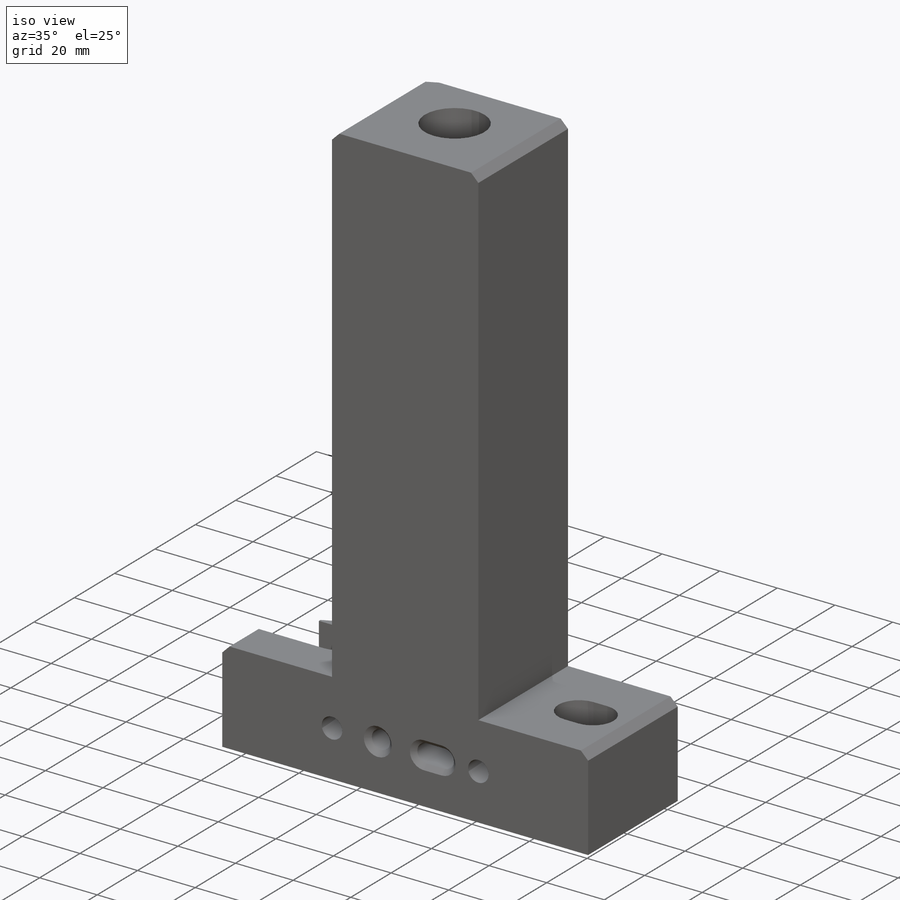
[diagram: iso view]
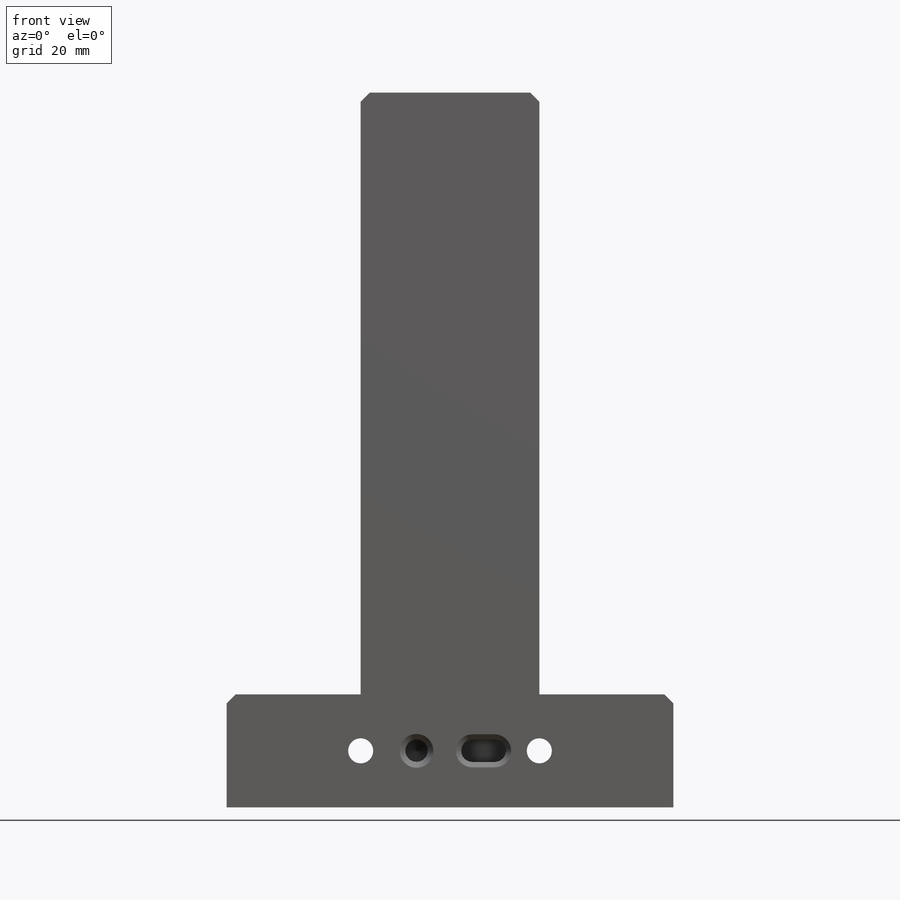
[diagram: front view]
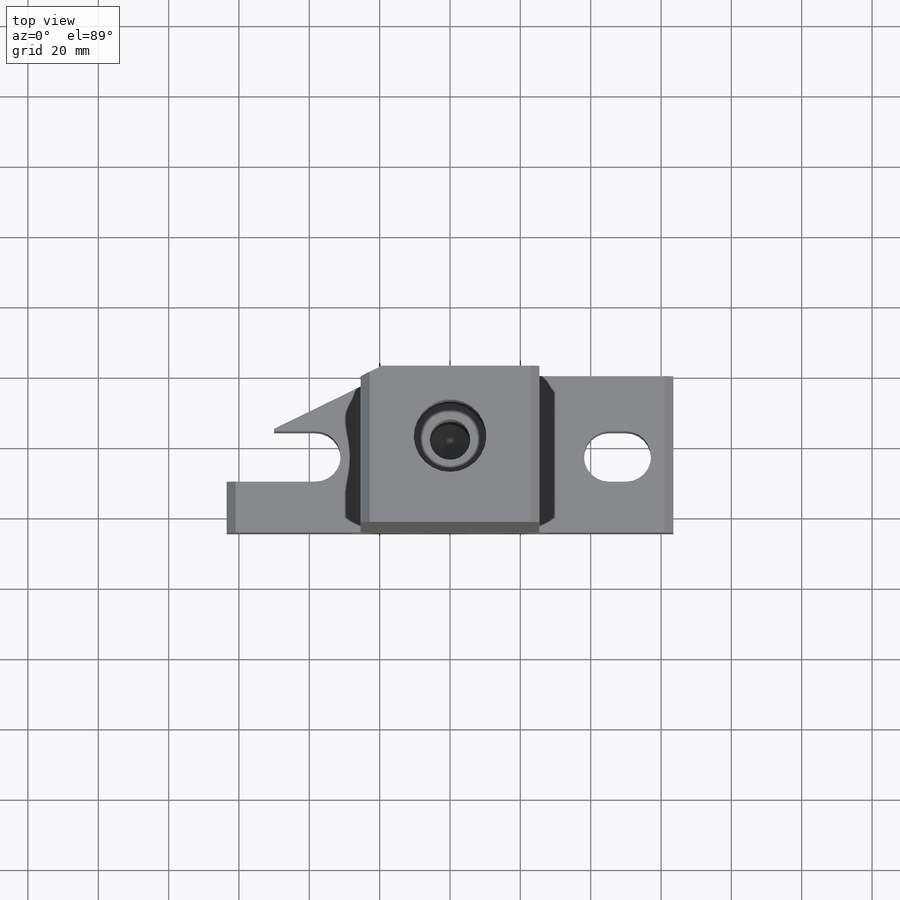
[diagram: top view]
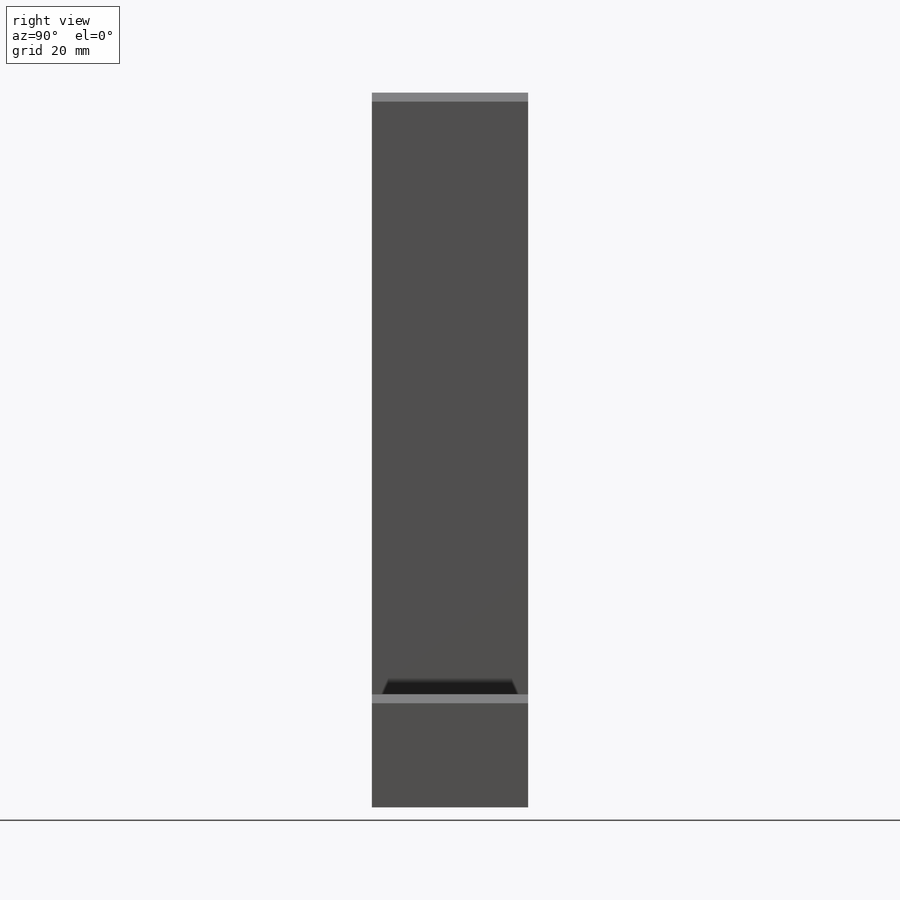
[diagram: right view]
SOLIDWORKS PART (.sldprt)
format: sldprt  version: not decoded by parser v0  size: 871,424 bytes
history: native  units: mm
features: sketch x15, hole x5, cut_extrude x4, chamfer x3, material x1, extrude x1, mirror x1, thread x1 (+16 scaffold rows collapsed)
feature tree (47):
  scaffold x16  (default folders/planes/origin — collapsed)
  material  "6061-T6 Al"
  sketch  "Sketch1"  dims[D1=63.5mm D2=25.4mm D3=32.131mm D4=203.2mm]
  extrude  "Extrude1"  Depth=44.45mm
  mirror  "Mirror2"
  chamfer  "Chamfer1"  Distance=2.54mm Angle=45deg
  chamfer  "Chamfer2"  Distance=2.54mm Angle=45deg
  hole  "13/16 (0.8125) Diameter Hole1"  Diameter=20.6375mm Depth=63.754mm
  sketch  "3DSketch6"  dims[D1=19.939mm D2=~22.302656mm D3=25.4mm]
  sketch  "Sketch13"  dims[hole-wizard template sketch: 46 standard entries collapsed; hole parameters kept: c15.Hole Dia.=20.6375mm c15.Hole Depth=63.754mm c15.D3=~14.816244mm c15.Drill Angle=180.0deg]
  hole  "#60 (0.04) Diameter Hole1"  Diameter=1.016mm Depth=9.62025mm
  sketch  "Sketch18"  dims[D1=142.24mm D2=25.4mm]
  sketch  "Sketch17"  dims[hole-wizard template sketch: 59 standard entries collapsed; hole parameters kept: c18.Thru Hole Dia.=1.016mm c18.Thru Hole Depth=~9.62025mm]
  hole  "CBORE for 1/4 Socket Head Cap Screw1"  Diameter=7.14248mm Depth=44.45mm
  sketch  "3DSketch10"  dims[D1=16.0655mm D2=16.0655mm D3=38.1mm D4=38.1mm]
  sketch  "Sketch19"  dims[hole-wizard template sketch: 42 standard entries collapsed; hole parameters kept: c12.Thru Hole Depth=44.45mm c12.C'Bore Dia.=11.1125mm c12.C'Bore Depth=15.748mm]
  hole  "1/4 (0.25) Diameter Hole2"  Diameter=6.36778mm Depth=12.7mm
  sketch  "Sketch21"  dims[D1=16.0655mm D2=53.975mm]
  sketch  "Sketch20"  dims[hole-wizard template sketch: 39 standard entries collapsed; hole parameters kept: c13.Hole Dia.=~6.36778mm c13.Hole Depth=12.7mm c13.Near C'Sink Dia.=9.652mm c13.D4=~33.297463mm c13.Near C'Sink Angle=90.0deg c14.D5=~14.816244mm c14.Drill Angle=118.0deg]
  sketch  "Sketch22"  dims[D1=3.1877mm D2=6.35mm D3=53.975mm D4=16.0655mm]
  cut_extrude  "Extrude4"  Depth=12.7mm
  hole  "1/2-20 Tapped Hole3"  Diameter=11.50874mm Depth=82.55mm
  sketch  "Sketch26"
  sketch  "Sketch25"  dims[hole-wizard template sketch: 46 standard entries collapsed; hole parameters kept: c15.Tap Drill Dia.=~11.50874mm c15.Tap Drill Depth=82.55mm c15.D3=~14.816244mm c15.Drill Angle=120.0deg]
  thread  "Hole Thread4"  Diameter=70.866mm  [1 undecoded]
  sketch  "Sketch27"  dims[c1.D1=40.64mm c2.D1=26.0deg c2.D2=63.5mm c2.D3=54.864mm c2.D4=~15.47876mm c3.D3=21.5392mm]
  cut_extrude  "Extrude5"  Depth=33.02mm
  chamfer  "Chamfer3"  Distance=1.524mm Angle=45deg
  sketch  "Sketch28"  dims[c1.D1=~11.50874mm c1.D2=7.1374mm c2.D1=47.625mm c2.D3=4.826mm c2.D4=88.9mm c2.D5=19.05mm c3.D4=85.852mm c3.D5=25.4mm c3.D6=21.59mm]
  cut_extrude  "Extrude6"  [1 undecoded]
  sketch  "Sketch29"  dims[D1=1.524mm]
  cut_extrude  "Cut-Extrude1"  [1 undecoded]
decode coverage: 26 of 30 modeling features carry decoded parameters
note: ~ marks probable driven/reference dimensions
note: 3 parameter values undecoded
summary: Diameter pulled from absorbed wizard sketch
note: suppression state not decoded; provenance and decode notes live in map.json
